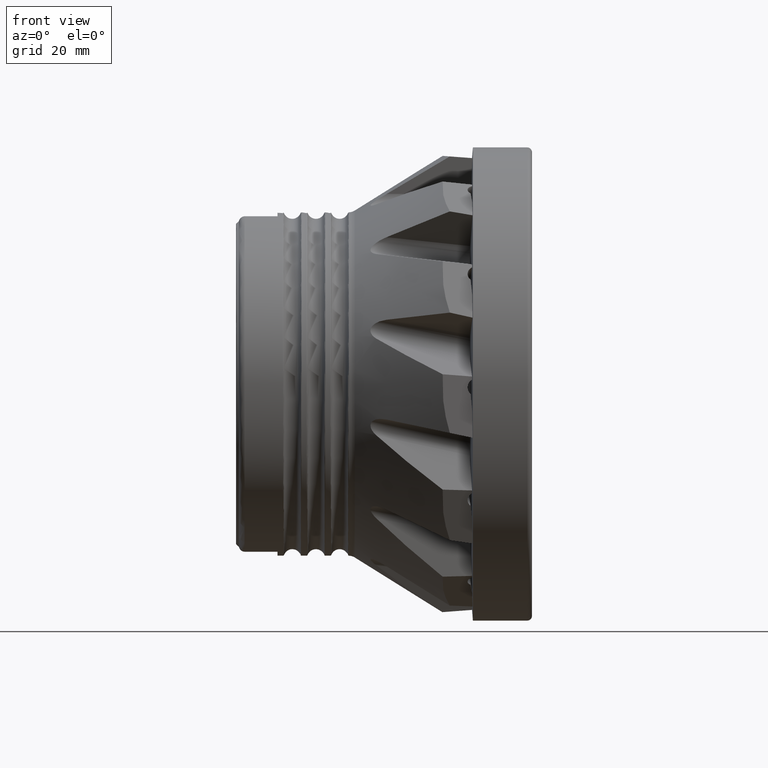
[diagram: clean part render]
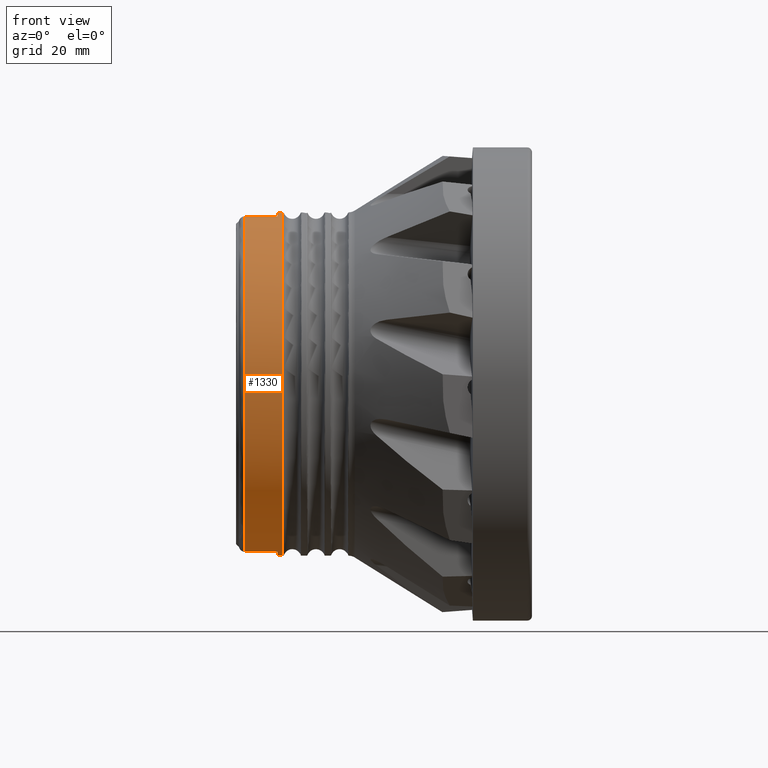
[diagram: same view with one face highlighted and labeled with its STEP entity id]
A machine part, front view. The second image highlights one B-rep face of the part: STEP entity #1330.
In plain terms, the highlighted cylindrical surface (bore or boss wall) has radius 29 mm, axis along (1, -0, -0).
Its self-contained STEP definition (entity closure, byte-faithful):
#120 = DIRECTION ( 'NONE',  ( -1.000000000000000000, -0.0000000000000000000, -0.0000000000000000000 ) ) ;
#232 = DIRECTION ( 'NONE',  ( 0.0000000000000000000, 1.000000000000000000, 0.0000000000000000000 ) ) ;
#422 = VERTEX_POINT ( 'NONE', #575 ) ;
#512 = VERTEX_POINT ( 'NONE', #7949 ) ;
#575 = CARTESIAN_POINT ( 'NONE',  ( -47.96233724523598600, -6.200000000000004600, -28.32948993540194500 ) ) ;
#615 = DIRECTION ( 'NONE',  ( -1.000000000000000000, 0.0000000000000000000, 0.0000000000000000000 ) ) ;
#630 = VECTOR ( 'NONE', #4101, 1000.000000000000000 ) ;
#639 = ORIENTED_EDGE ( 'NONE', *, *, #2943, .F. ) ;
#657 = DIRECTION ( 'NONE',  ( -1.000000000000000000, -0.0000000000000000000, -0.0000000000000000000 ) ) ;
#682 = EDGE_LOOP ( 'NONE', ( #3188, #5029, #7400, #7902, #6345, #2706, #639, #6088 ) ) ;
#848 = CARTESIAN_POINT ( 'NONE',  ( -47.96233724523603600, 6.199999999999994000, 28.32948993540123400 ) ) ;
#929 = CARTESIAN_POINT ( 'NONE',  ( -42.39999999999999900, -6.200000000000003700, -28.32948993540123400 ) ) ;
#955 = LINE ( 'NONE', #2647, #630 ) ;
#1132 = CARTESIAN_POINT ( 'NONE',  ( -42.39999999999999900, 0.0000000000000000000, 0.0000000000000000000 ) ) ;
#1253 = AXIS2_PLACEMENT_3D ( 'NONE', #2055, #7067, #2790 ) ;
#1298 = CIRCLE ( 'NONE', #8936, 28.99999999999999600 ) ;
#1330 = ADVANCED_FACE ( 'NONE', ( #5858, #6210 ), #5645, .T. ) ;
#1366 = CARTESIAN_POINT ( 'NONE',  ( 1.279753697209506400E-015, -6.199999999999995700, -28.32948993540123400 ) ) ;
#1472 = AXIS2_PLACEMENT_3D ( 'NONE', #4466, #120, #5171 ) ;
#1710 = DIRECTION ( 'NONE',  ( 1.000000000000000000, -0.0000000000000000000, -0.0000000000000000000 ) ) ;
#1864 = DIRECTION ( 'NONE',  ( 0.0000000000000000000, 3.552713678800500900E-015, -1.000000000000000000 ) ) ;
#2055 = CARTESIAN_POINT ( 'NONE',  ( -47.96233724523603600, -6.942354316154874700E-015, 0.0000000000000000000 ) ) ;
#2556 = EDGE_CURVE ( 'NONE', #8245, #9236, #9256, .T. ) ;
#2647 = CARTESIAN_POINT ( 'NONE',  ( -2.559507394419012800E-016, 6.199999999999995700, 28.32948993540123400 ) ) ;
#2706 = ORIENTED_EDGE ( 'NONE', *, *, #8880, .F. ) ;
#2790 = DIRECTION ( 'NONE',  ( 0.0000000000000000000, 1.000000000000000000, 0.0000000000000000000 ) ) ;
#2943 = EDGE_CURVE ( 'NONE', #7631, #3178, #955, .T. ) ;
#3178 = VERTEX_POINT ( 'NONE', #848 ) ;
#3188 = ORIENTED_EDGE ( 'NONE', *, *, #2556, .F. ) ;
#3348 = DIRECTION ( 'NONE',  ( 1.000000000000000000, -0.0000000000000000000, -0.0000000000000000000 ) ) ;
#4034 = CARTESIAN_POINT ( 'NONE',  ( 1.279753697209506400E-015, -6.199999999999995700, 28.32948993540123400 ) ) ;
#4101 = DIRECTION ( 'NONE',  ( -1.000000000000000000, 0.0000000000000000000, 0.0000000000000000000 ) ) ;
#4151 = VECTOR ( 'NONE', #615, 1000.000000000000000 ) ;
#4185 = EDGE_CURVE ( 'NONE', #512, #7735, #8940, .T. ) ;
#4187 = AXIS2_PLACEMENT_3D ( 'NONE', #4972, #657, #5687 ) ;
#4200 = EDGE_CURVE ( 'NONE', #5290, #5290, #8042, .T. ) ;
#4242 = CARTESIAN_POINT ( 'NONE',  ( -42.39999999999999900, 6.199999999999994000, 28.32948993540123400 ) ) ;
#4466 = CARTESIAN_POINT ( 'NONE',  ( -41.49059737205869400, 0.0000000000000000000, 0.0000000000000000000 ) ) ;
#4560 = LINE ( 'NONE', #1366, #4151 ) ;
#4572 = DIRECTION ( 'NONE',  ( -1.000000000000000000, -1.110223024625157000E-016, 0.0000000000000000000 ) ) ;
#4972 = CARTESIAN_POINT ( 'NONE',  ( -42.39999999999999900, 0.0000000000000000000, 0.0000000000000000000 ) ) ;
#5029 = ORIENTED_EDGE ( 'NONE', *, *, #6413, .F. ) ;
#5171 = DIRECTION ( 'NONE',  ( 0.0000000000000000000, 0.0000000000000000000, -1.000000000000000000 ) ) ;
#5189 = CIRCLE ( 'NONE', #1253, 28.99999999999999600 ) ;
#5290 = VERTEX_POINT ( 'NONE', #7008 ) ;
#5302 = CARTESIAN_POINT ( 'NONE',  ( -42.39999999999999900, -6.200000000000003700, 28.32948993540123400 ) ) ;
#5388 = AXIS2_PLACEMENT_3D ( 'NONE', #7422, #1710, #8219 ) ;
#5393 = EDGE_LOOP ( 'NONE', ( #6722 ) ) ;
#5645 = CYLINDRICAL_SURFACE ( 'NONE', #5388, 28.99999999999999600 ) ;
#5687 = DIRECTION ( 'NONE',  ( 0.0000000000000000000, 0.0000000000000000000, -1.000000000000000000 ) ) ;
#5692 = CIRCLE ( 'NONE', #7281, 28.99999999999999600 ) ;
#5756 = CARTESIAN_POINT ( 'NONE',  ( -42.39999999999999900, 6.199999999999994000, -28.32948993540123400 ) ) ;
#5858 = FACE_OUTER_BOUND ( 'NONE', #682, .T. ) ;
#5953 = VECTOR ( 'NONE', #3348, 1000.000000000000000 ) ;
#5990 = CIRCLE ( 'NONE', #4187, 28.99999999999999600 ) ;
#6088 = ORIENTED_EDGE ( 'NONE', *, *, #7075, .F. ) ;
#6186 = DIRECTION ( 'NONE',  ( -1.000000000000000000, -0.0000000000000000000, -0.0000000000000000000 ) ) ;
#6188 = CARTESIAN_POINT ( 'NONE',  ( -47.96233724523603600, -6.200000000000004600, 28.32948993540123800 ) ) ;
#6210 = FACE_OUTER_BOUND ( 'NONE', #5393, .T. ) ;
#6345 = ORIENTED_EDGE ( 'NONE', *, *, #4185, .F. ) ;
#6402 = VERTEX_POINT ( 'NONE', #929 ) ;
#6413 = EDGE_CURVE ( 'NONE', #422, #8245, #5692, .T. ) ;
#6588 = CARTESIAN_POINT ( 'NONE',  ( -2.559507394419012800E-016, 6.199999999999995700, -28.32948993540123400 ) ) ;
#6722 = ORIENTED_EDGE ( 'NONE', *, *, #4200, .T. ) ;
#7008 = CARTESIAN_POINT ( 'NONE',  ( -41.49059737205869400, 0.0000000000000000000, -28.99999999999999600 ) ) ;
#7067 = DIRECTION ( 'NONE',  ( -1.000000000000000000, -1.110223024625157000E-016, 0.0000000000000000000 ) ) ;
#7075 = EDGE_CURVE ( 'NONE', #9236, #7631, #1298, .T. ) ;
#7281 = AXIS2_PLACEMENT_3D ( 'NONE', #8888, #4572, #232 ) ;
#7400 = ORIENTED_EDGE ( 'NONE', *, *, #7675, .F. ) ;
#7422 = CARTESIAN_POINT ( 'NONE',  ( 0.0000000000000000000, 0.0000000000000000000, 0.0000000000000000000 ) ) ;
#7631 = VERTEX_POINT ( 'NONE', #4242 ) ;
#7675 = EDGE_CURVE ( 'NONE', #6402, #422, #4560, .T. ) ;
#7735 = VERTEX_POINT ( 'NONE', #5756 ) ;
#7902 = ORIENTED_EDGE ( 'NONE', *, *, #8928, .F. ) ;
#7949 = CARTESIAN_POINT ( 'NONE',  ( -47.96233724523603600, 6.199999999999994000, -28.32948993540124900 ) ) ;
#8042 = CIRCLE ( 'NONE', #1472, 28.99999999999999600 ) ;
#8219 = DIRECTION ( 'NONE',  ( 0.0000000000000000000, 0.0000000000000000000, -1.000000000000000000 ) ) ;
#8245 = VERTEX_POINT ( 'NONE', #6188 ) ;
#8744 = DIRECTION ( 'NONE',  ( 1.000000000000000000, -0.0000000000000000000, -0.0000000000000000000 ) ) ;
#8880 = EDGE_CURVE ( 'NONE', #3178, #512, #5189, .T. ) ;
#8888 = CARTESIAN_POINT ( 'NONE',  ( -47.96233724523603600, -6.942354316154874700E-015, 0.0000000000000000000 ) ) ;
#8928 = EDGE_CURVE ( 'NONE', #7735, #6402, #5990, .T. ) ;
#8936 = AXIS2_PLACEMENT_3D ( 'NONE', #1132, #6186, #1864 ) ;
#8940 = LINE ( 'NONE', #6588, #9294 ) ;
#9236 = VERTEX_POINT ( 'NONE', #5302 ) ;
#9256 = LINE ( 'NONE', #4034, #5953 ) ;
#9294 = VECTOR ( 'NONE', #8744, 1000.000000000000000 ) ;